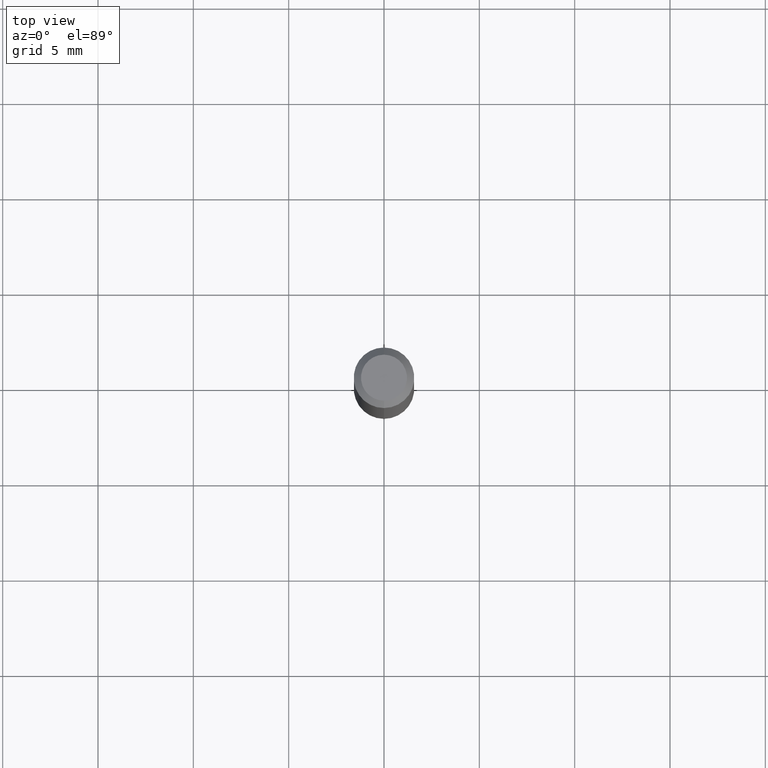
[diagram: clean part render]
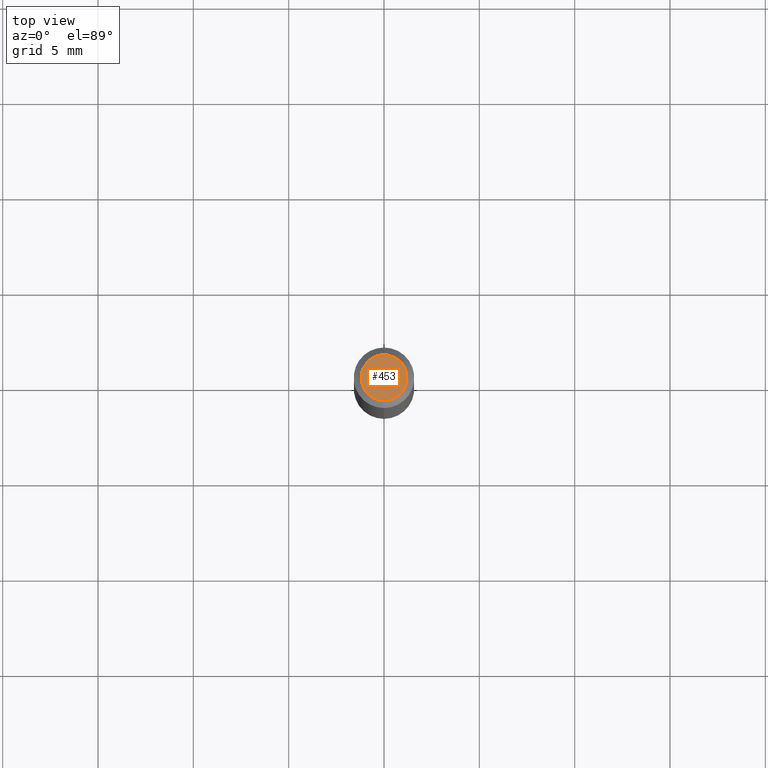
[diagram: same view with one face highlighted and labeled with its STEP entity id]
A machine part, top view. The second image highlights one B-rep face of the part: STEP entity #453.
In plain terms, the highlighted planar face has unit normal (0, -0, -1).
Its self-contained STEP definition (entity closure, byte-faithful):
#4 = DIRECTION ( 'NONE',  ( 2.445449223703286785E-29, -3.491509382071719844E-15, -1.000000000000000000 ) ) ;
#24 = CIRCLE ( 'NONE', #441, 0.04749999999999999362 ) ;
#29 = EDGE_CURVE ( 'NONE', #266, #478, #24, .T. ) ;
#66 = DIRECTION ( 'NONE',  ( -2.445449223703287346E-29, 3.491509382071719450E-15, 1.000000000000000000 ) ) ;
#82 = CARTESIAN_POINT ( 'NONE',  ( 1.601742390469674696E-45, -2.286900308450406049E-31, -6.549890199903894046E-17 ) ) ;
#105 = DIRECTION ( 'NONE',  ( -6.982962677686266711E-15, -1.000000000000000000, 3.491509382071719844E-15 ) ) ;
#117 = PLANE ( 'NONE',  #321 ) ;
#128 = ORIENTED_EDGE ( 'NONE', *, *, #29, .T. ) ;
#201 = DIRECTION ( 'NONE',  ( -6.982962677686266711E-15, -1.000000000000000000, 3.491509382071719844E-15 ) ) ;
#265 = CARTESIAN_POINT ( 'NONE',  ( 3.840629472727447874E-16, 0.04749999999999999362, -2.313455976474456035E-16 ) ) ;
#266 = VERTEX_POINT ( 'NONE', #339 ) ;
#298 = AXIS2_PLACEMENT_3D ( 'NONE', #417, #66, #105 ) ;
#321 = AXIS2_PLACEMENT_3D ( 'NONE', #400, #4, #511 ) ;
#339 = CARTESIAN_POINT ( 'NONE',  ( -3.773273898774340269E-16, -0.04749999999999999362, 1.003477936493677349E-16 ) ) ;
#373 = EDGE_CURVE ( 'NONE', #478, #266, #410, .T. ) ;
#400 = CARTESIAN_POINT ( 'NONE',  ( 3.316907271900976096E-16, 0.04749999999999999362, -1.985961466479261332E-16 ) ) ;
#410 = CIRCLE ( 'NONE', #298, 0.04749999999999999362 ) ;
#417 = CARTESIAN_POINT ( 'NONE',  ( 1.601742390469674696E-45, -2.286900308450406049E-31, -6.549890199903894046E-17 ) ) ;
#438 = DIRECTION ( 'NONE',  ( -2.445449223703287346E-29, 3.491509382071719450E-15, 1.000000000000000000 ) ) ;
#441 = AXIS2_PLACEMENT_3D ( 'NONE', #82, #438, #201 ) ;
#453 = ADVANCED_FACE ( 'NONE', ( #479 ), #117, .F. ) ;
#460 = EDGE_LOOP ( 'NONE', ( #500, #128 ) ) ;
#478 = VERTEX_POINT ( 'NONE', #265 ) ;
#479 = FACE_OUTER_BOUND ( 'NONE', #460, .T. ) ;
#500 = ORIENTED_EDGE ( 'NONE', *, *, #373, .T. ) ;
#511 = DIRECTION ( 'NONE',  ( 6.982962677686265922E-15, 1.000000000000000000, -3.491509382071719844E-15 ) ) ;